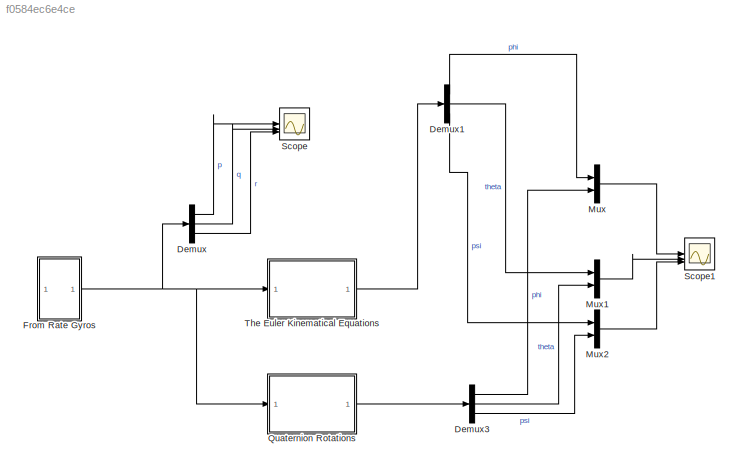
MODEL slx_f0584ec6e4ce
KIND model
CONFIG AbsTol = auto
CONFIG EnableMultiTasking = off
CONFIG FixedStep = .05
CONFIG MaxStep = auto
CONFIG MinStep = auto
CONFIG RelTol = 1e-3
CONFIG SampleTimeConstraint = Unconstrained
CONFIG SolverName = FixedStepAuto
CONFIG StartTime = 0.0
CONFIG StopTime = 100
BLOCK [Demux] Demux
  Outputs = 3
BLOCK [Demux] Demux1
  Outputs = 3
BLOCK [Demux] Demux3
  Outputs = 3
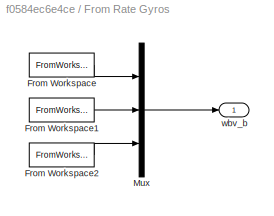
BLOCK [SubSystem] From Rate Gyros
BLOCK [FromWorkspace] From Rate Gyros/From Workspace
  VariableName = [t p]
BLOCK [FromWorkspace] From Rate Gyros/From Workspace1
  VariableName = [t q]
BLOCK [FromWorkspace] From Rate Gyros/From Workspace2
  VariableName = [t r]
BLOCK [Mux] From Rate Gyros/Mux
  DisplayOption = bar
  Inputs = 3
BLOCK [Outport] From Rate Gyros/wbv_b
  VectorParamsAs1DForOutWhenUnconnected = off
BLOCK [Mux] Mux
  DisplayOption = bar
  Inputs = 2
BLOCK [Mux] Mux1
  DisplayOption = bar
  Inputs = 2
BLOCK [Mux] Mux2
  DisplayOption = bar
  Inputs = 2
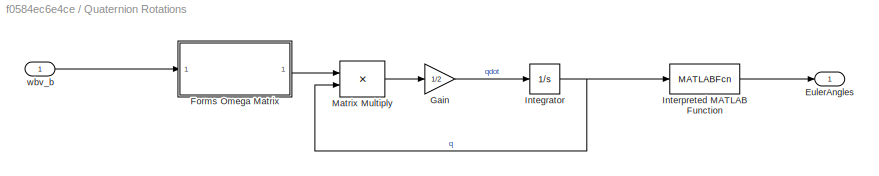
BLOCK [SubSystem] Quaternion Rotations
BLOCK [Outport] Quaternion Rotations/EulerAngles
  VectorParamsAs1DForOutWhenUnconnected = off
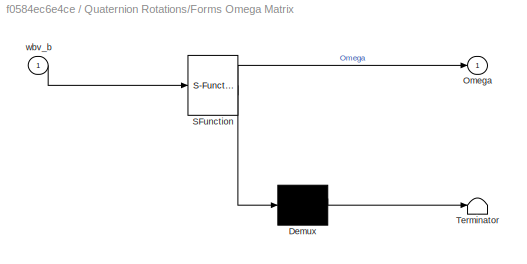
BLOCK [SubSystem] Quaternion Rotations/Forms Omega Matrix
  ErrorFcn = Stateflow.Translate.translate
  PermitHierarchicalResolution = ExplicitOnly
  SFBlockType = MATLAB Function
  TreatAsAtomicUnit = on
BLOCK [Demux] Quaternion Rotations/Forms Omega Matrix/ Demux 
  Outputs = 1
BLOCK [S-Function] Quaternion Rotations/Forms Omega Matrix/ SFunction 
  EnableBusSupport = off
  FunctionName = sf_sfun
  PortCounts = [1 2]
  SFcnIsStateOwnerBlock = off
  SFunctionDeploymentMode = off
  Tag = Stateflow S-Function 3
BLOCK [Terminator] Quaternion Rotations/Forms Omega Matrix/ Terminator 
BLOCK [Outport] Quaternion Rotations/Forms Omega Matrix/Omega
  VectorParamsAs1DForOutWhenUnconnected = off
BLOCK [Inport] Quaternion Rotations/Forms Omega Matrix/wbv_b
BLOCK [Gain] Quaternion Rotations/Gain
  Gain = 1/2
BLOCK [Integrator] Quaternion Rotations/Integrator
  InitialCondition = q0
BLOCK [MATLABFcn] Quaternion Rotations/Interpreted MATLAB Function
  MATLABFcn = WrapperQuat2Angle
BLOCK [Product] Quaternion Rotations/Matrix Multiply
  Multiplication = Matrix(*)
BLOCK [Inport] Quaternion Rotations/wbv_b
BLOCK [Scope] Scope
  Floating = off
  NumInputPorts = 3
  ScopeSpecificationString = Simulink.scopes.TimeScopeBlockCfg('CurrentConfiguration', extmgr.ConfigurationSet(extmgr.Configuration('Core','General UI',true),extmgr.Configuration('Core','Source UI',true),extmgr.Configuration('Sources','WiredSimulink',true),extmgr.Configuration('Visuals','Time Domain',true,'SerializedDisplays',{struct('MinYLimReal','-0.17699','MaxYLimReal','0.14035','YLabelReal','','MinYLimMag','0.00000','MaxY...<+2686ch>
BLOCK [Scope] Scope1
  Floating = off
  NumInputPorts = 3
  ScopeSpecificationString = Simulink.scopes.TimeScopeBlockCfg('CurrentConfiguration', extmgr.ConfigurationSet(extmgr.Configuration('Core','General UI',true),extmgr.Configuration('Core','Source UI',true),extmgr.Configuration('Sources','WiredSimulink',true,'DataLoggingVariableName','ScopeData1'),extmgr.Configuration('Visuals','Time Domain',true,'SerializedDisplays',{struct('MinYLimReal','-0.13336','MaxYLimReal','1.20028','YLab...<+2738ch>
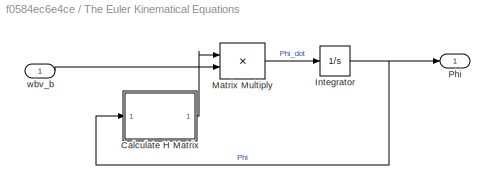
BLOCK [SubSystem] The Euler Kinematical Equations
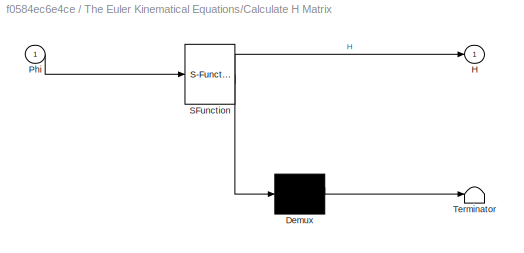
BLOCK [SubSystem] The Euler Kinematical Equations/Calculate H Matrix
  ErrorFcn = Stateflow.Translate.translate
  PermitHierarchicalResolution = ExplicitOnly
  SFBlockType = MATLAB Function
  TreatAsAtomicUnit = on
BLOCK [Demux] The Euler Kinematical Equations/Calculate H Matrix/ Demux 
  Outputs = 1
BLOCK [S-Function] The Euler Kinematical Equations/Calculate H Matrix/ SFunction 
  EnableBusSupport = off
  FunctionName = sf_sfun
  PortCounts = [1 2]
  SFcnIsStateOwnerBlock = off
  SFunctionDeploymentMode = off
  Tag = Stateflow S-Function 2
BLOCK [Terminator] The Euler Kinematical Equations/Calculate H Matrix/ Terminator 
BLOCK [Outport] The Euler Kinematical Equations/Calculate H Matrix/H
  VectorParamsAs1DForOutWhenUnconnected = off
BLOCK [Inport] The Euler Kinematical Equations/Calculate H Matrix/Phi
BLOCK [Integrator] The Euler Kinematical Equations/Integrator
  InitialCondition = [phi0;theta0;psi0]
BLOCK [Product] The Euler Kinematical Equations/Matrix Multiply
  Multiplication = Matrix(*)
BLOCK [Outport] The Euler Kinematical Equations/Phi
  VectorParamsAs1DForOutWhenUnconnected = off
BLOCK [Inport] The Euler Kinematical Equations/wbv_b
LINE Demux1:1 -> Mux:1
LINE Demux1:2 -> Mux1:1
LINE Demux1:3 -> Mux2:1
LINE Demux3:1 -> Mux:2
LINE Demux3:2 -> Mux1:2
LINE Demux3:3 -> Mux2:2
LINE Demux:1 -> Scope:1
LINE Demux:2 -> Scope:2
LINE Demux:3 -> Scope:3
LINE From Rate Gyros/From Workspace1:1 -> From Rate Gyros/Mux:2
LINE From Rate Gyros/From Workspace2:1 -> From Rate Gyros/Mux:3
LINE From Rate Gyros/From Workspace:1 -> From Rate Gyros/Mux:1
LINE From Rate Gyros/Mux:1 -> From Rate Gyros/wbv_b:1
NET From Rate Gyros:1 -> Demux:1, Quaternion Rotations:1, The Euler Kinematical Equations:1
LINE Mux1:1 -> Scope1:2
LINE Mux2:1 -> Scope1:3
LINE Mux:1 -> Scope1:1
LINE Quaternion Rotations/Forms Omega Matrix:1 -> Quaternion Rotations/Matrix Multiply:1
LINE Quaternion Rotations/Gain:1 -> Quaternion Rotations/Integrator:1
NET Quaternion Rotations/Integrator:1 -> Quaternion Rotations/Interpreted MATLAB Function:1, Quaternion Rotations/Matrix Multiply:2
LINE Quaternion Rotations/Interpreted MATLAB Function:1 -> Quaternion Rotations/EulerAngles:1
LINE Quaternion Rotations/Matrix Multiply:1 -> Quaternion Rotations/Gain:1
LINE Quaternion Rotations/wbv_b:1 -> Quaternion Rotations/Forms Omega Matrix:1
LINE Quaternion Rotations:1 -> Demux3:1
LINE The Euler Kinematical Equations/Calculate H Matrix:1 -> The Euler Kinematical Equations/Matrix Multiply:1
NET The Euler Kinematical Equations/Integrator:1 -> The Euler Kinematical Equations/Calculate H Matrix:1, The Euler Kinematical Equations/Phi:1
LINE The Euler Kinematical Equations/Matrix Multiply:1 -> The Euler Kinematical Equations/Integrator:1
LINE The Euler Kinematical Equations/wbv_b:1 -> The Euler Kinematical Equations/Matrix Multiply:2
LINE The Euler Kinematical Equations:1 -> Demux1:1
note: NET lines group one-source signal fan-out (src -> all destinations, sorted); 1:1 wires keep LINE
CHART Quaternion Rotations/Forms Omega Matrix states=1 transitions=1
  STATE_LABEL 'eML_blk_kernel()'
  STATE_LABEL 'SCRIPT:\nfunction Omega  = fcn(wbv_b)\n\nwx = wbv_b(1);\nwy = wbv_b(2);\nwz = wbv_b(3);\n\nOmega = [0 -wx -wy -wz;\n    wx 0 wz -wy;\n    wy -wz 0 wx;\n    wz wy -wx 0];\n'
CHART The Euler Kinematical Equations/Calculate H Matrix states=1 transitions=1
  STATE_LABEL 'eML_blk_kernel()'
  STATE_LABEL 'SCRIPT:\nfunction H = fcn(Phi)\n\n%Unpack Phi\nphi     = Phi(1);\ntheta   = Phi(2);\npsi     = Phi(3);\n\n%Input the H matrix\nH = [1 tan(theta)*sin(phi) tan(theta)*cos(phi);\n    0 cos(phi) -sin(phi);\n    0 sin(phi)/cos(theta) cos(phi)/cos(theta)];\n'
CHART  states=0 transitions=0
CHART  states=0 transitions=0
